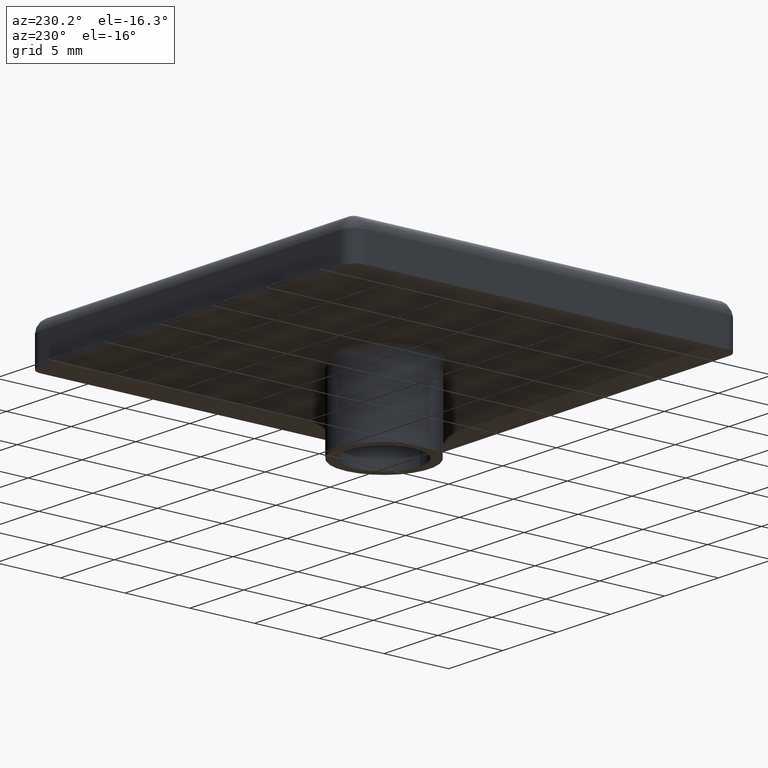
[diagram: clean part render]
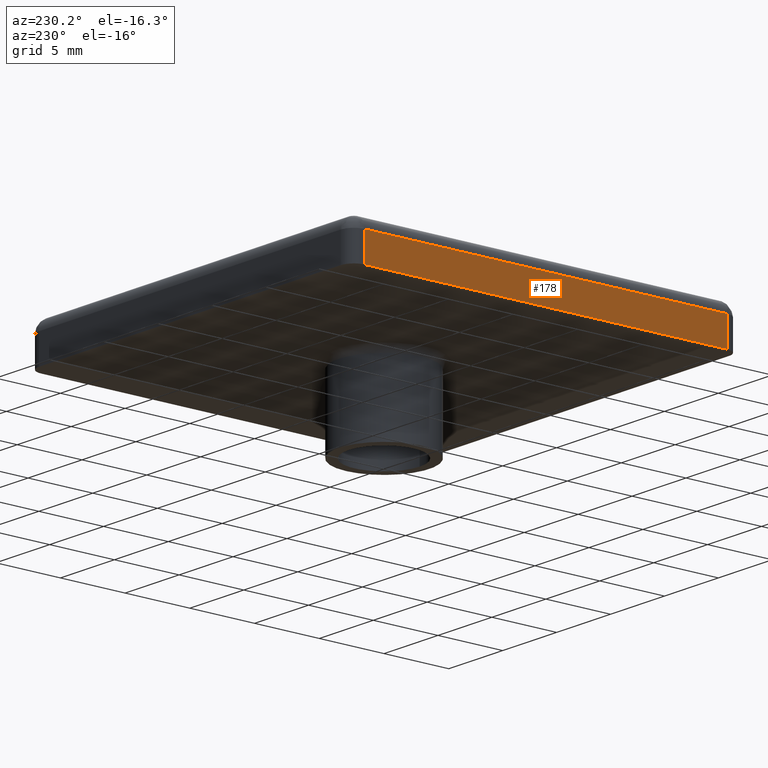
[diagram: same view with one face highlighted and labeled with its STEP entity id]
A machine part, auxiliary view. The second image highlights one B-rep face of the part: STEP entity #178.
In plain terms, the highlighted planar face has unit normal (-1, 0, 0).
Its self-contained STEP definition (entity closure, byte-faithful):
#120=CARTESIAN_POINT('',(-14.999999999999996,14.000000000033303,0.0));
#121=VERTEX_POINT('',#120);
#122=CARTESIAN_POINT('',(-14.999999999999996,14.000000000033303,2.200000000000000));
#123=VERTEX_POINT('',#122);
#124=CARTESIAN_POINT('',(-14.999999999999996,14.000000000033303,0.0));
#125=DIRECTION('',(0.0,0.0,1.0));
#126=VECTOR('',#125,2.200000000000000);
#127=LINE('',#124,#126);
#128=EDGE_CURVE('',#121,#123,#127,.T.);
#148=CARTESIAN_POINT('',(-14.999999999999996,15.000000000033303,0.0));
#149=DIRECTION('',(-1.0,0.0,0.0));
#150=DIRECTION('',(0.0,-1.0,0.0));
#151=AXIS2_PLACEMENT_3D('',#148,#149,#150);
#152=PLANE('',#151);
#153=CARTESIAN_POINT('',(-15.0,-13.999999999966697,0.0));
#154=VERTEX_POINT('',#153);
#155=CARTESIAN_POINT('',(-14.999999999999996,14.000000000033303,0.0));
#156=DIRECTION('',(0.0,-1.0,0.0));
#157=VECTOR('',#156,28.0);
#158=LINE('',#155,#157);
#159=EDGE_CURVE('',#121,#154,#158,.T.);
#160=ORIENTED_EDGE('',*,*,#159,.T.);
#161=CARTESIAN_POINT('',(-15.0,-13.999999999966697,2.200000000000000));
#162=VERTEX_POINT('',#161);
#163=CARTESIAN_POINT('',(-15.0,-13.999999999966697,0.0));
#164=DIRECTION('',(0.0,0.0,1.0));
#165=VECTOR('',#164,2.200000000000000);
#166=LINE('',#163,#165);
#167=EDGE_CURVE('',#154,#162,#166,.T.);
#168=ORIENTED_EDGE('',*,*,#167,.T.);
#169=CARTESIAN_POINT('',(-14.999999999999996,14.000000000033303,2.200000000000000));
#170=DIRECTION('',(0.0,-1.0,0.0));
#171=VECTOR('',#170,28.0);
#172=LINE('',#169,#171);
#173=EDGE_CURVE('',#123,#162,#172,.T.);
#174=ORIENTED_EDGE('',*,*,#173,.F.);
#175=ORIENTED_EDGE('',*,*,#128,.F.);
#176=EDGE_LOOP('',(#160,#168,#174,#175));
#177=FACE_OUTER_BOUND('',#176,.T.);
#178=ADVANCED_FACE('',(#177),#152,.T.);